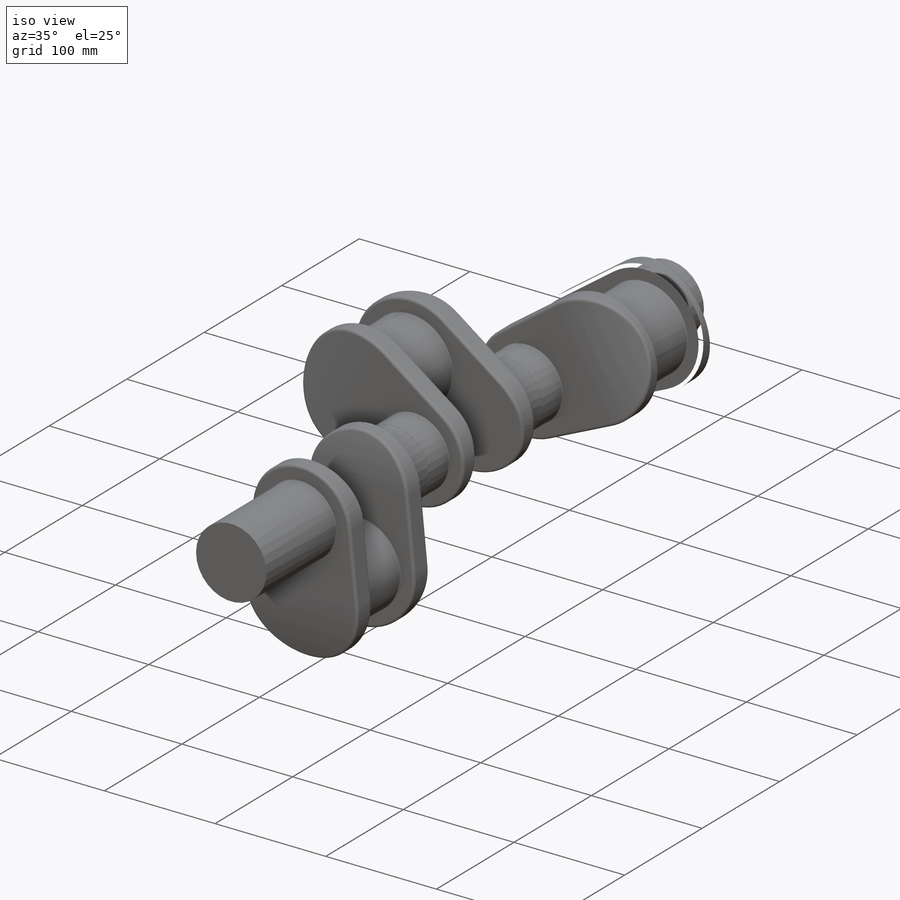
[diagram: iso view]
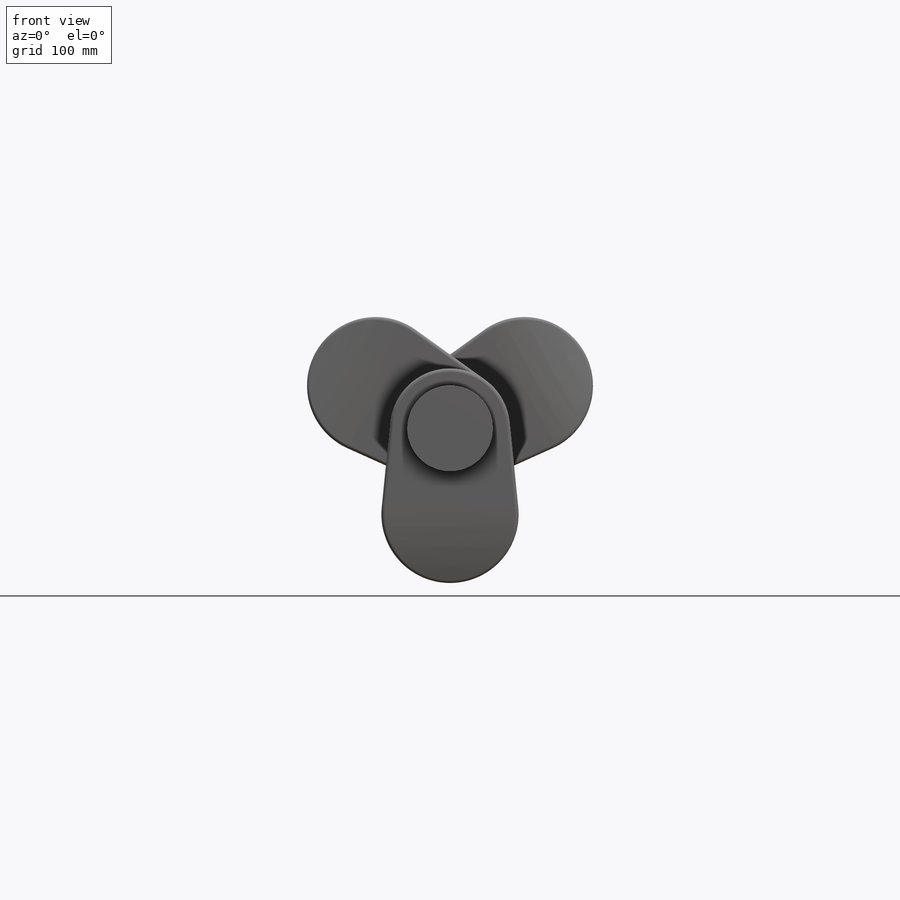
[diagram: front view]
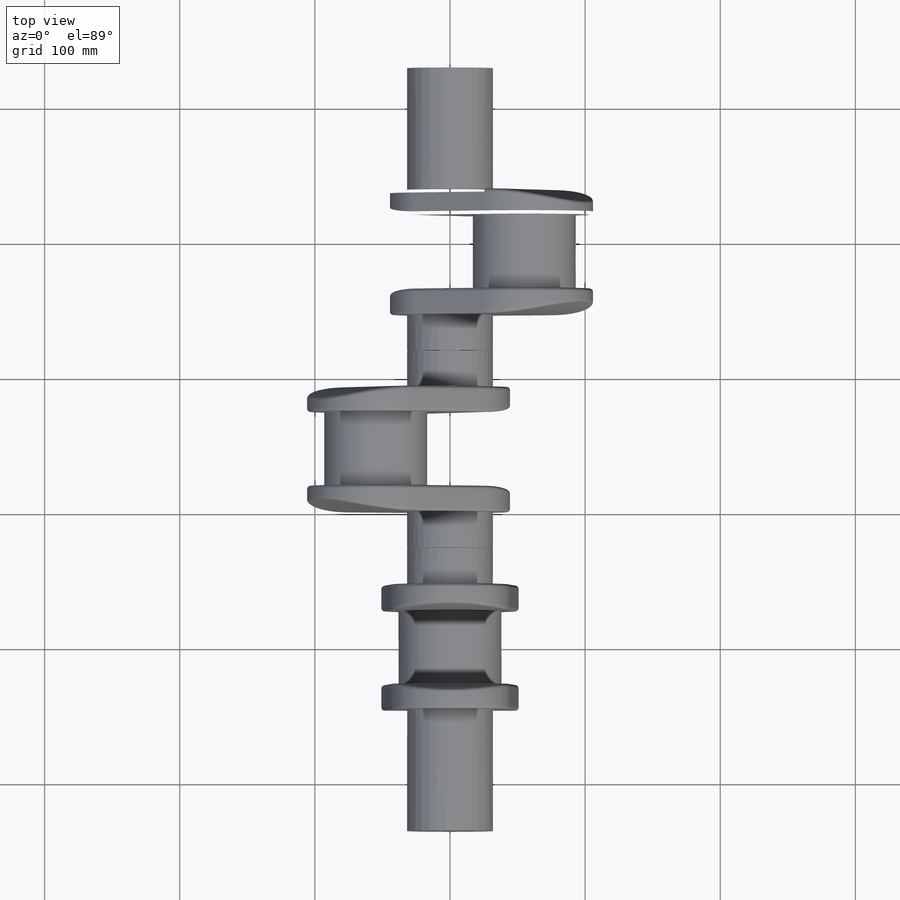
[diagram: top view]
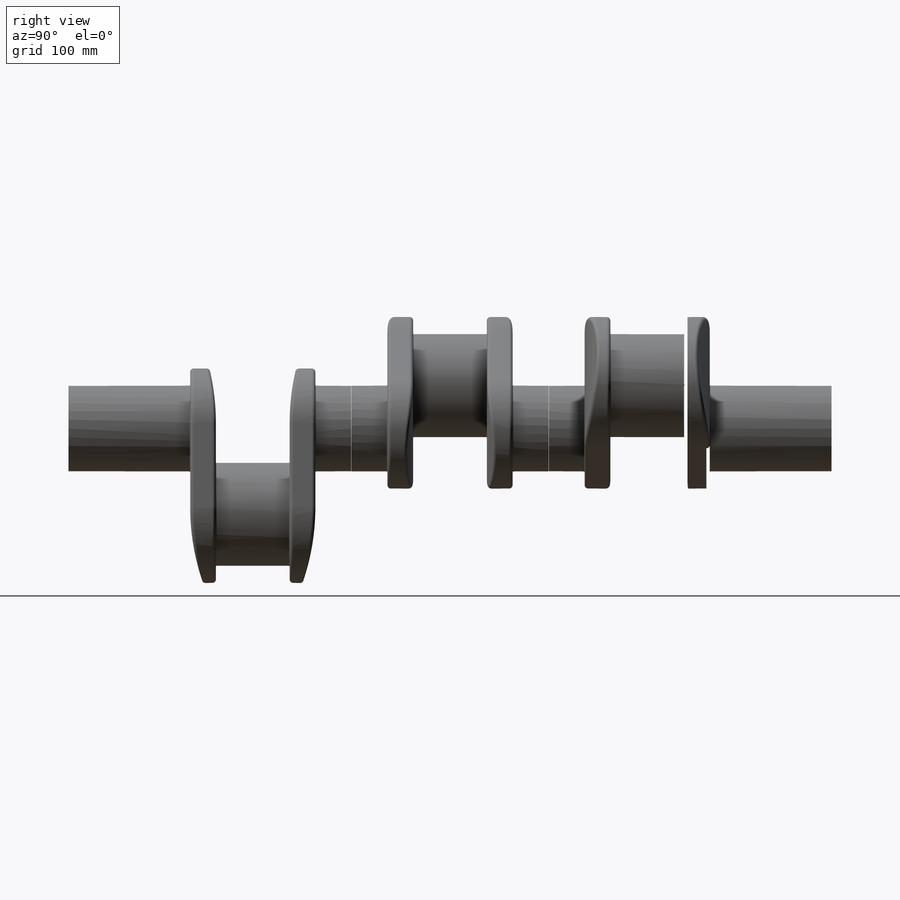
[diagram: right view]
SOLIDWORKS PART (.sldprt)
format: sldprt  version: not decoded by parser v0  size: 831,488 bytes
history: native  units: mm
features: sketch x7, extrude x5, cut_extrude x2, fillet x2, move_body x2, material x1, mirror x1, pattern_linear x1 (+11 scaffold rows collapsed)
feature tree (32):
  scaffold x11  (default folders/planes/origin — collapsed)
  material  "AISI 321 Annealed Stainless Steel (SS)"
  sketch  "Sketch1"  dims[D1=76.2mm]
  extrude  "Boss-Extrude1"  Depth=27.31mm
  sketch  "Sketch2"  dims[c1.D1=76.2mm c1.D3=88.9mm c1.D4=88.9mm c2.D1=12.7mm c2.D2=63.5mm]
  extrude  "Boss-Extrude2"  Depth=19mm
  sketch  "Sketch3"  dims[D1=63.5mm]
  extrude  "Boss-Extrude3"  Depth=26.57mm
  sketch  "Sketch4"  dims[D1=169.0mm]
  cut_extrude  "Cut-Extrude1"  Depth=163.72mm
  sketch  "Sketch5"  dims[c1.D1=~586.119438mm c1.D2=169.0mm c2.D1=5.0mm]
  cut_extrude  "Cut-Extrude2"  Depth=83.72mm
  fillet  "Fillet1"  Radius=0.64mm
  fillet  "Fillet2"  Radius=2.54mm
  mirror  "Mirror1"
  pattern_linear  "LPattern1"  Count1=3 Count2=1 Spacing1=145.96mm Spacing2=10mm
  move_body  "Body-Move/Copy1"
  move_body  "Body-Move/Copy2"
  sketch  "Sketch6"  dims[D1=0.0mm]
  extrude  "Boss-Extrude4"  Depth=63.5mm
  sketch  "Sketch7"  dims[D1=0.0mm]
  extrude  "Boss-Extrude5"  Depth=63.5mm
decode coverage: 17 of 20 modeling features carry decoded parameters
note: ~ marks probable driven/reference dimensions
note: suppression state not decoded; provenance and decode notes live in map.json
